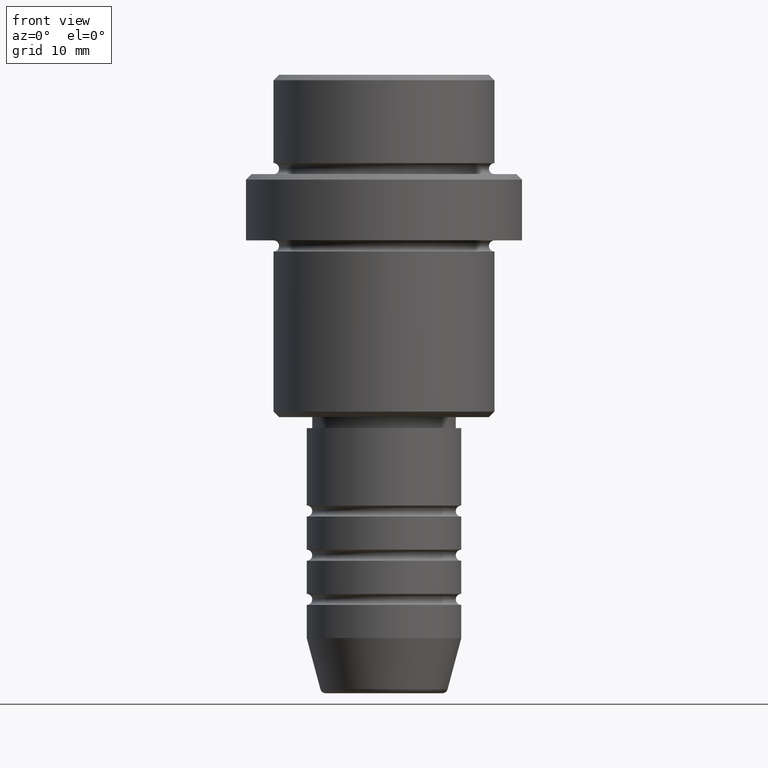
[diagram: clean part render]
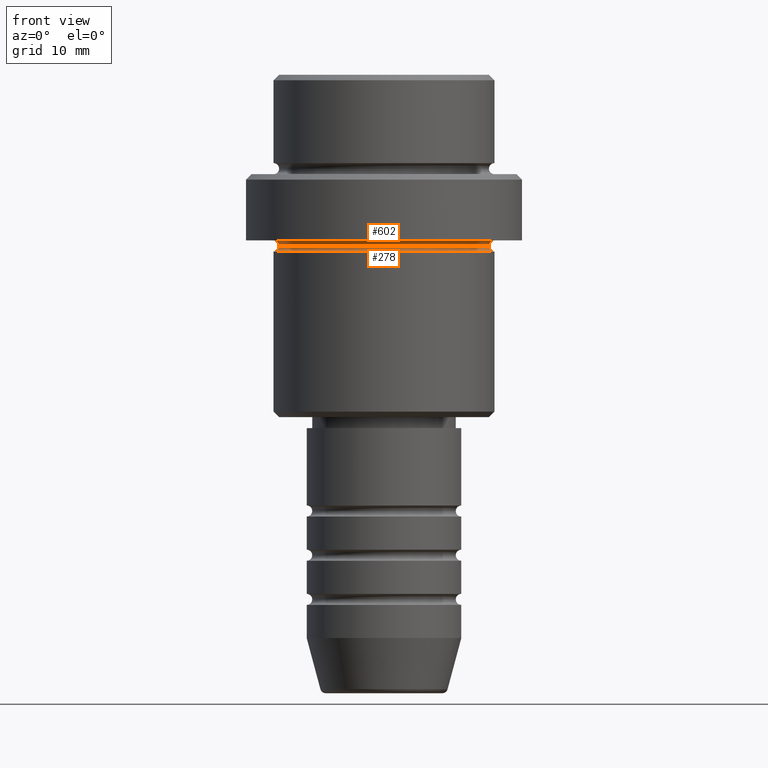
[diagram: same view with one multi-face feature highlighted, each face labeled with its STEP entity id]
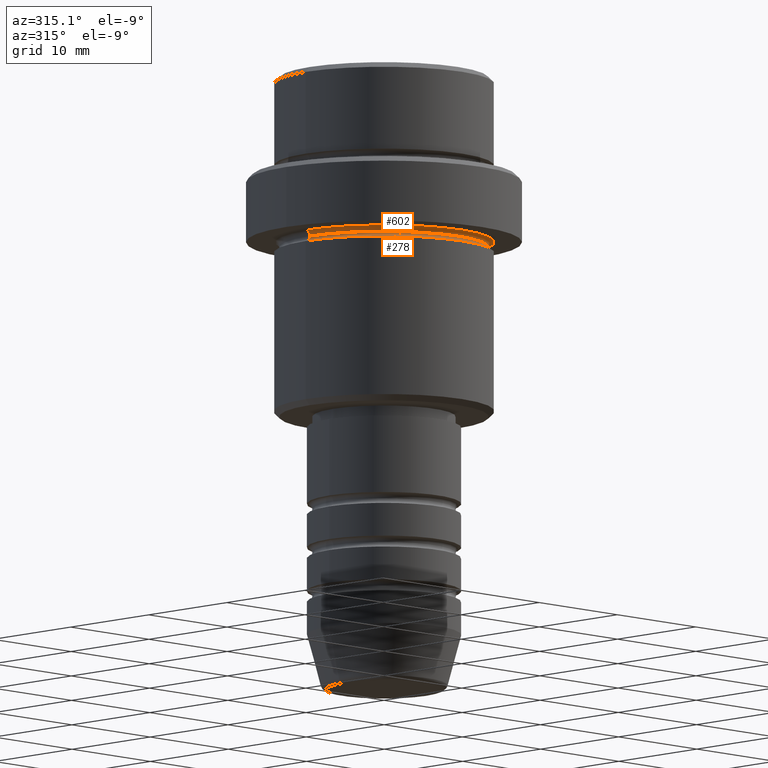
[diagram: same view with one multi-face feature highlighted, each face labeled with its STEP entity id]
A machine part, front view. The highlighted faces form ONE feature: a constant-radius fillet chain: 2 tangent blend faces with common blend radius 0.5 mm. The faces share edges in the B-rep.
A second angle (auxiliary view) of the same feature is appended — it is thin or edge-on in the first view.
Their STEP definitions:
[1] entity #602 (Torus):
#72 = CIRCLE ( 'NONE', #991, 0.5000000000000004441 ) ;
#119 = ORIENTED_EDGE ( 'NONE', *, *, #1118, .T. ) ;
#137 = DIRECTION ( 'NONE',  ( -1.000000000000000000, 0.000000000000000000, 0.000000000000000000 ) ) ;
#157 = DIRECTION ( 'NONE',  ( -0.000000000000000000, -0.000000000000000000, 1.000000000000000000 ) ) ;
#203 = VERTEX_POINT ( 'NONE', #1321 ) ;
#206 = EDGE_CURVE ( 'NONE', #203, #497, #1155, .T. ) ;
#234 = ORIENTED_EDGE ( 'NONE', *, *, #1252, .F. ) ;
#238 = CARTESIAN_POINT ( 'NONE',  ( 0.000000000000000000, 0.000000000000000000, -15.50000000000000000 ) ) ;
#244 = CIRCLE ( 'NONE', #759, 0.5000000000000004441 ) ;
#277 = DIRECTION ( 'NONE',  ( 0.000000000000000000, 0.000000000000000000, -1.000000000000000000 ) ) ;
#307 = CARTESIAN_POINT ( 'NONE',  ( 9.999999999999994671, 1.224646799147352665E-15, -15.50000000000000000 ) ) ;
#320 = AXIS2_PLACEMENT_3D ( 'NONE', #1189, #641, #766 ) ;
#354 = CIRCLE ( 'NONE', #687, 9.999999999999994671 ) ;
#441 = ORIENTED_EDGE ( 'NONE', *, *, #1274, .F. ) ;
#473 = CARTESIAN_POINT ( 'NONE',  ( 0.000000000000000000, 0.000000000000000000, -15.00000000000000000 ) ) ;
#497 = VERTEX_POINT ( 'NONE', #512 ) ;
#512 = CARTESIAN_POINT ( 'NONE',  ( -9.499999999999994671, 0.000000000000000000, -15.50000000000000000 ) ) ;
#569 = CARTESIAN_POINT ( 'NONE',  ( -9.999999999999994671, 0.000000000000000000, -15.50000000000000000 ) ) ;
#602 = ADVANCED_FACE ( 'NONE', ( #837 ), #1093, .F. ) ;
#641 = DIRECTION ( 'NONE',  ( 0.000000000000000000, 0.000000000000000000, -1.000000000000000000 ) ) ;
#646 = VERTEX_POINT ( 'NONE', #1100 ) ;
#687 = AXIS2_PLACEMENT_3D ( 'NONE', #473, #157, #137 ) ;
#743 = DIRECTION ( 'NONE',  ( -1.000000000000000000, -1.224646799147353454E-16, 0.000000000000000000 ) ) ;
#759 = AXIS2_PLACEMENT_3D ( 'NONE', #307, #959, #743 ) ;
#766 = DIRECTION ( 'NONE',  ( -1.000000000000000000, 0.000000000000000000, 0.000000000000000000 ) ) ;
#837 = FACE_OUTER_BOUND ( 'NONE', #860, .T. ) ;
#860 = EDGE_LOOP ( 'NONE', ( #1049, #119, #234, #441 ) ) ;
#919 = CARTESIAN_POINT ( 'NONE',  ( -9.999999999999994671, 0.000000000000000000, -15.00000000000000000 ) ) ;
#945 = AXIS2_PLACEMENT_3D ( 'NONE', #238, #1297, #1401 ) ;
#959 = DIRECTION ( 'NONE',  ( -1.224646799147353207E-16, 1.000000000000000000, 0.000000000000000000 ) ) ;
#991 = AXIS2_PLACEMENT_3D ( 'NONE', #569, #1254, #277 ) ;
#1049 = ORIENTED_EDGE ( 'NONE', *, *, #206, .F. ) ;
#1093 = TOROIDAL_SURFACE ( 'NONE', #320, 9.999999999999994671, 0.5000000000000000000 ) ;
#1100 = CARTESIAN_POINT ( 'NONE',  ( 9.999999999999994671, 1.224646799147352665E-15, -15.00000000000000000 ) ) ;
#1118 = EDGE_CURVE ( 'NONE', #203, #646, #244, .T. ) ;
#1155 = CIRCLE ( 'NONE', #945, 9.499999999999994671 ) ;
#1189 = CARTESIAN_POINT ( 'NONE',  ( 0.000000000000000000, 0.000000000000000000, -15.50000000000000000 ) ) ;
#1191 = VERTEX_POINT ( 'NONE', #919 ) ;
#1252 = EDGE_CURVE ( 'NONE', #1191, #646, #354, .T. ) ;
#1254 = DIRECTION ( 'NONE',  ( -0.000000000000000000, -1.000000000000000000, -0.000000000000000000 ) ) ;
#1274 = EDGE_CURVE ( 'NONE', #497, #1191, #72, .T. ) ;
#1297 = DIRECTION ( 'NONE',  ( 0.000000000000000000, 0.000000000000000000, -1.000000000000000000 ) ) ;
#1321 = CARTESIAN_POINT ( 'NONE',  ( 9.499999999999994671, 1.194030629168668681E-15, -15.50000000000000000 ) ) ;
#1401 = DIRECTION ( 'NONE',  ( -1.000000000000000000, 0.000000000000000000, 0.000000000000000000 ) ) ;
[2] entity #278 (Torus):
#90 = CARTESIAN_POINT ( 'NONE',  ( 9.999999999999994671, 1.224646799147352665E-15, -15.50000000000000000 ) ) ;
#95 = VERTEX_POINT ( 'NONE', #603 ) ;
#108 = AXIS2_PLACEMENT_3D ( 'NONE', #1213, #1217, #872 ) ;
#114 = AXIS2_PLACEMENT_3D ( 'NONE', #918, #1327, #778 ) ;
#131 = EDGE_LOOP ( 'NONE', ( #1079, #1182, #1163, #546 ) ) ;
#203 = VERTEX_POINT ( 'NONE', #1321 ) ;
#206 = EDGE_CURVE ( 'NONE', #203, #497, #1155, .T. ) ;
#237 = CIRCLE ( 'NONE', #114, 0.5000000000000004441 ) ;
#238 = CARTESIAN_POINT ( 'NONE',  ( 0.000000000000000000, 0.000000000000000000, -15.50000000000000000 ) ) ;
#278 = ADVANCED_FACE ( 'NONE', ( #970 ), #730, .F. ) ;
#316 = DIRECTION ( 'NONE',  ( -1.000000000000000000, -1.224646799147353454E-16, 0.000000000000000000 ) ) ;
#417 = DIRECTION ( 'NONE',  ( -1.224646799147353207E-16, 1.000000000000000000, 0.000000000000000000 ) ) ;
#423 = EDGE_CURVE ( 'NONE', #95, #497, #237, .T. ) ;
#475 = AXIS2_PLACEMENT_3D ( 'NONE', #90, #417, #316 ) ;
#497 = VERTEX_POINT ( 'NONE', #512 ) ;
#512 = CARTESIAN_POINT ( 'NONE',  ( -9.499999999999994671, 0.000000000000000000, -15.50000000000000000 ) ) ;
#546 = ORIENTED_EDGE ( 'NONE', *, *, #423, .F. ) ;
#603 = CARTESIAN_POINT ( 'NONE',  ( -10.00000000000000000, 1.224646799147353256E-15, -16.00000000000000000 ) ) ;
#647 = CARTESIAN_POINT ( 'NONE',  ( 10.00000000000000000, 0.000000000000000000, -16.00000000000000000 ) ) ;
#659 = EDGE_CURVE ( 'NONE', #1087, #203, #1095, .T. ) ;
#730 = TOROIDAL_SURFACE ( 'NONE', #108, 9.999999999999994671, 0.5000000000000000000 ) ;
#778 = DIRECTION ( 'NONE',  ( 0.000000000000000000, 0.000000000000000000, -1.000000000000000000 ) ) ;
#827 = AXIS2_PLACEMENT_3D ( 'NONE', #1072, #1281, #958 ) ;
#872 = DIRECTION ( 'NONE',  ( -1.000000000000000000, 0.000000000000000000, 0.000000000000000000 ) ) ;
#918 = CARTESIAN_POINT ( 'NONE',  ( -9.999999999999994671, 0.000000000000000000, -15.50000000000000000 ) ) ;
#945 = AXIS2_PLACEMENT_3D ( 'NONE', #238, #1297, #1401 ) ;
#958 = DIRECTION ( 'NONE',  ( 1.000000000000000000, 0.000000000000000000, 0.000000000000000000 ) ) ;
#970 = FACE_OUTER_BOUND ( 'NONE', #131, .T. ) ;
#1040 = CIRCLE ( 'NONE', #827, 10.00000000000000000 ) ;
#1072 = CARTESIAN_POINT ( 'NONE',  ( 0.000000000000000000, 0.000000000000000000, -16.00000000000000000 ) ) ;
#1079 = ORIENTED_EDGE ( 'NONE', *, *, #1414, .T. ) ;
#1087 = VERTEX_POINT ( 'NONE', #647 ) ;
#1095 = CIRCLE ( 'NONE', #475, 0.5000000000000004441 ) ;
#1155 = CIRCLE ( 'NONE', #945, 9.499999999999994671 ) ;
#1163 = ORIENTED_EDGE ( 'NONE', *, *, #206, .T. ) ;
#1182 = ORIENTED_EDGE ( 'NONE', *, *, #659, .T. ) ;
#1213 = CARTESIAN_POINT ( 'NONE',  ( 0.000000000000000000, 0.000000000000000000, -15.50000000000000000 ) ) ;
#1217 = DIRECTION ( 'NONE',  ( 0.000000000000000000, 0.000000000000000000, -1.000000000000000000 ) ) ;
#1281 = DIRECTION ( 'NONE',  ( -0.000000000000000000, -0.000000000000000000, 1.000000000000000000 ) ) ;
#1297 = DIRECTION ( 'NONE',  ( 0.000000000000000000, 0.000000000000000000, -1.000000000000000000 ) ) ;
#1321 = CARTESIAN_POINT ( 'NONE',  ( 9.499999999999994671, 1.194030629168668681E-15, -15.50000000000000000 ) ) ;
#1327 = DIRECTION ( 'NONE',  ( -0.000000000000000000, -1.000000000000000000, -0.000000000000000000 ) ) ;
#1401 = DIRECTION ( 'NONE',  ( -1.000000000000000000, 0.000000000000000000, 0.000000000000000000 ) ) ;
#1414 = EDGE_CURVE ( 'NONE', #95, #1087, #1040, .T. ) ;